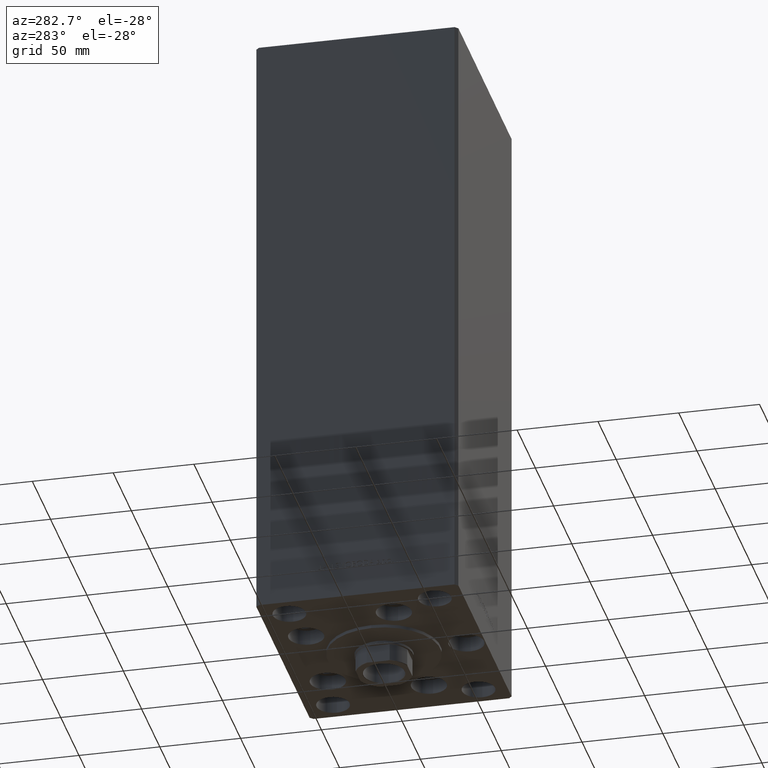
[diagram: clean part render]
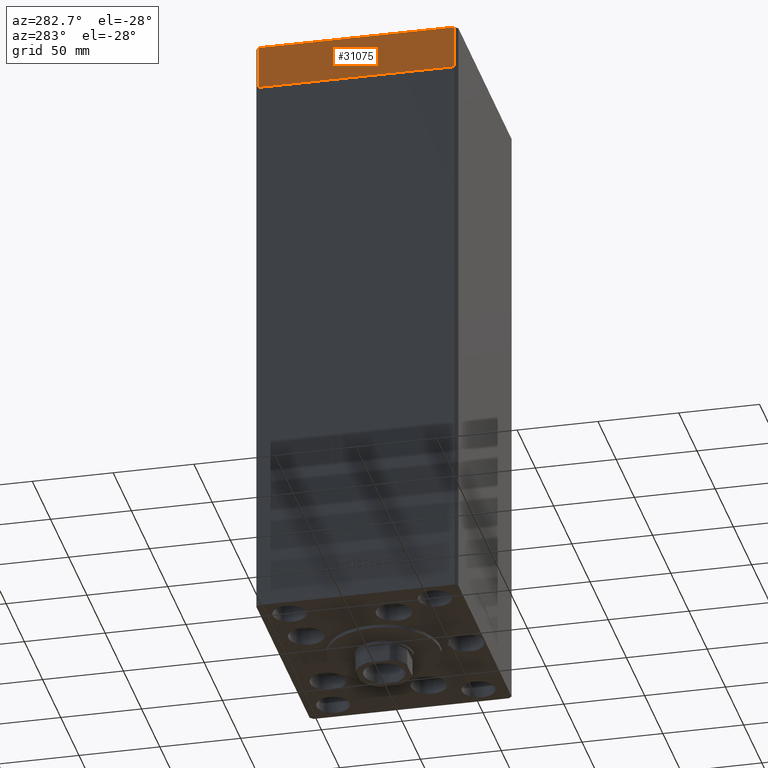
[diagram: same view with one face highlighted and labeled with its STEP entity id]
A machine part, auxiliary view. The second image highlights one B-rep face of the part: STEP entity #31075.
In plain terms, the highlighted planar face has unit normal (-1, 0, 0).
Its self-contained STEP definition (entity closure, byte-faithful):
#2433 = LINE ( 'NONE', #17687, #46998 ) ;
#4563 = PLANE ( 'NONE',  #28222 ) ;
#5287 = ORIENTED_EDGE ( 'NONE', *, *, #32250, .F. ) ;
#5689 = VERTEX_POINT ( 'NONE', #34584 ) ;
#9571 = DIRECTION ( 'NONE',  ( 0.000000000000000000, 0.000000000000000000, 1.000000000000000000 ) ) ;
#10050 = VECTOR ( 'NONE', #9571, 1000.000000000000000 ) ;
#12293 = VECTOR ( 'NONE', #17189, 1000.000000000000000 ) ;
#12961 = CARTESIAN_POINT ( 'NONE',  ( -75.00000000000001421, 60.49999999999997158, -27.00000000000000000 ) ) ;
#14337 = CARTESIAN_POINT ( 'NONE',  ( -75.00000000000001421, 60.49999999999997158, -27.00000000000000000 ) ) ;
#16939 = LINE ( 'NONE', #36653, #12293 ) ;
#17189 = DIRECTION ( 'NONE',  ( 0.000000000000000000, -1.000000000000000000, 0.000000000000000000 ) ) ;
#17687 = CARTESIAN_POINT ( 'NONE',  ( -75.00000000000001421, 60.49999999999997158, -27.00000000000000000 ) ) ;
#19284 = EDGE_CURVE ( 'NONE', #49285, #33026, #2433, .T. ) ;
#21415 = VECTOR ( 'NONE', #28214, 1000.000000000000000 ) ;
#23822 = FACE_OUTER_BOUND ( 'NONE', #40443, .T. ) ;
#25903 = CARTESIAN_POINT ( 'NONE',  ( -75.00000000000001421, 60.49999999999997158, -27.00000000000000000 ) ) ;
#27442 = CARTESIAN_POINT ( 'NONE',  ( -75.00000000000001421, 60.49999999999997158, 0.000000000000000000 ) ) ;
#27549 = CARTESIAN_POINT ( 'NONE',  ( -75.00000000000001421, -60.50000000000001421, 0.000000000000000000 ) ) ;
#27716 = ORIENTED_EDGE ( 'NONE', *, *, #40229, .T. ) ;
#28214 = DIRECTION ( 'NONE',  ( 0.000000000000000000, -1.000000000000000000, 0.000000000000000000 ) ) ;
#28222 = AXIS2_PLACEMENT_3D ( 'NONE', #25903, #41365, #35043 ) ;
#28567 = LINE ( 'NONE', #48017, #10050 ) ;
#30608 = ORIENTED_EDGE ( 'NONE', *, *, #45142, .T. ) ;
#31075 = ADVANCED_FACE ( 'NONE', ( #23822 ), #4563, .T. ) ;
#32250 = EDGE_CURVE ( 'NONE', #33026, #49410, #16939, .T. ) ;
#33026 = VERTEX_POINT ( 'NONE', #27442 ) ;
#34584 = CARTESIAN_POINT ( 'NONE',  ( -75.00000000000001421, -60.50000000000001421, -27.00000000000000000 ) ) ;
#35043 = DIRECTION ( 'NONE',  ( 0.000000000000000000, 0.000000000000000000, 1.000000000000000000 ) ) ;
#36653 = CARTESIAN_POINT ( 'NONE',  ( -75.00000000000001421, 60.49999999999997158, 0.000000000000000000 ) ) ;
#39435 = ORIENTED_EDGE ( 'NONE', *, *, #19284, .F. ) ;
#40229 = EDGE_CURVE ( 'NONE', #5689, #49410, #28567, .T. ) ;
#40443 = EDGE_LOOP ( 'NONE', ( #5287, #39435, #30608, #27716 ) ) ;
#41365 = DIRECTION ( 'NONE',  ( -1.000000000000000000, 0.000000000000000000, 0.000000000000000000 ) ) ;
#42684 = LINE ( 'NONE', #12961, #21415 ) ;
#45142 = EDGE_CURVE ( 'NONE', #49285, #5689, #42684, .T. ) ;
#46998 = VECTOR ( 'NONE', #48126, 1000.000000000000000 ) ;
#48017 = CARTESIAN_POINT ( 'NONE',  ( -75.00000000000001421, -60.50000000000001421, -27.00000000000000000 ) ) ;
#48126 = DIRECTION ( 'NONE',  ( 0.000000000000000000, 0.000000000000000000, 1.000000000000000000 ) ) ;
#49285 = VERTEX_POINT ( 'NONE', #14337 ) ;
#49410 = VERTEX_POINT ( 'NONE', #27549 ) ;